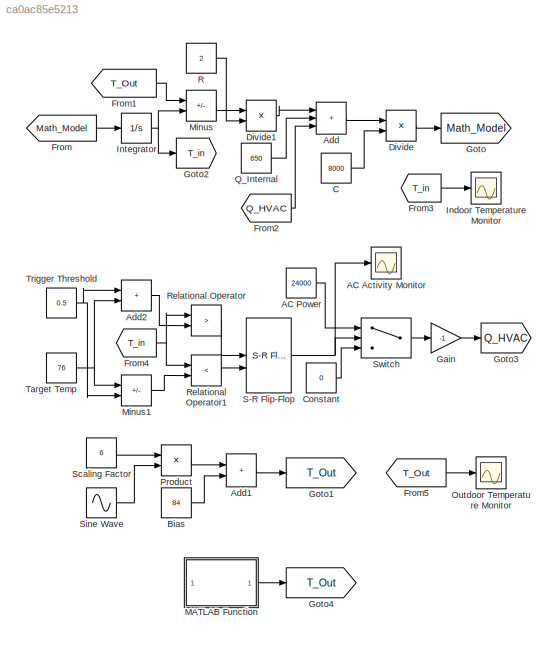
MODEL slx_ca0ac85e5213
KIND model
CONFIG AbsTol = auto
CONFIG EnableMultiTasking = off
CONFIG FixedStep = 1
CONFIG MaxStep = auto
CONFIG MinStep = auto
CONFIG RelTol = 1e-3
CONFIG SampleTimeConstraint = Unconstrained
CONFIG SolverName = ode1
CONFIG StartTime = 0.0
CONFIG StopTime = 24
BLOCK [Scope] AC Activity Monitor
  ActiveDisplayYMaximum = 1.982537619397353
  ActiveDisplayYMinimum = -1.7530103886364947
  DataLoggingVariableName = ScopeData2
  Floating = off
  GraphicalSettings = {"Style":{"BackgroundColor":[0.12941176470588237,0.12941176470588237,0.12941176470588237],"AxesColor":[0.07058823529411765,0.07058823529411765,0.07058823529411765],"LabelsColor":[0.8509803921568627,0.8509803921568627,0.8509803921568627],"PreserveColors":false,"Visible":[true],"LineStyle":["-"],"LineWidth":[1.5],"BarWidth":[0.9],"LineColor":["auto"],"LineFaceAlpha":[1],"LineEdgeAlpha":[1],"Marker":...<+1964ch>
  MultipleDisplayCache = [{"MaxYLimMag":1,"MaxYLimReal":1.982537619397353,"MinYLimMag":0,"MinYLimReal":-1.7530103886364947,"PlotAsMagnitudePhase":false,"ShowGrid":true,"ShowLegend":false,"Title":"%<SignalLabel>","YLabel":""}]
  NumInputPorts = 1
  ScopeFrameLocation = window
  Visible = on
  WasSavedAsWebScope = on
  WindowPosition = [2.000000,32.000000,766.000000,434.000000,]
BLOCK [Constant] AC Power
  Value = 24000
BLOCK [Sum] Add
  IconShape = rectangular
  Inputs = +++
BLOCK [Sum] Add1
  IconShape = rectangular
BLOCK [Sum] Add2
  IconShape = rectangular
BLOCK [Constant] Bias
  Value = 84
BLOCK [Constant] C
  Value = 8000
BLOCK [Constant] Constant
  Value = 0
BLOCK [Product] Divide
  Inputs = */
BLOCK [Product] Divide1
  Inputs = */
BLOCK [From] From
  GotoTag = Math_Model
BLOCK [From] From1
  GotoTag = T_Out
BLOCK [From] From2
  GotoTag = Q_HVAC
BLOCK [From] From3
  GotoTag = T_in
BLOCK [From] From4
  GotoTag = T_in
BLOCK [From] From5
  GotoTag = T_Out
BLOCK [Gain] Gain
  Gain = -1
BLOCK [Goto] Goto
  GotoTag = Math_Model
BLOCK [Goto] Goto1
  GotoTag = T_Out
BLOCK [Goto] Goto2
  GotoTag = T_in
BLOCK [Goto] Goto3
  GotoTag = Q_HVAC
BLOCK [Goto] Goto4
  Commented = on
  GotoTag = T_Out
BLOCK [Scope] Indoor Temperature Monitor
  ActiveDisplayYMaximum = 79.919930750359285
  ActiveDisplayYMinimum = 72.298778350453588
  Floating = off
  GraphicalSettings = {"AxesScalingProperties":{"AlignXAxis":"Center","AlignYAxis":"Center","AutoScaleXAxisLimits":false,"AxesScaling":"Manual","AxesScalingNumUpdates":10,"ExpandOnly":true,"ScaleAxesLimitsAtStop":false,"XAxisDataRange":100,"YAxisDataRange":80},"DisplayProperties":{"ColorOrder":["auto","auto","auto","auto","auto","auto","auto","auto","auto","auto","auto","auto","auto","auto","auto","auto","auto","auto",...<+2034ch>
  MultipleDisplayCache = [{"MaxYLimMag":77.207352791417975,"MaxYLimReal":79.919930750359285,"MinYLimMag":74.754738578731335,"MinYLimReal":72.298778350453588,"PlotAsMagnitudePhase":false,"ShowGrid":true,"ShowLegend":false,"Title":"%<SignalLabel>","YLabel":""}]
  NumInputPorts = 1
  ScopeFrameLocation = window
  Visible = on
  WasSavedAsWebScope = on
  WindowPosition = [770.000000,497.000000,766.000000,434.000000,]
BLOCK [Integrator] Integrator
  InitialCondition = 75
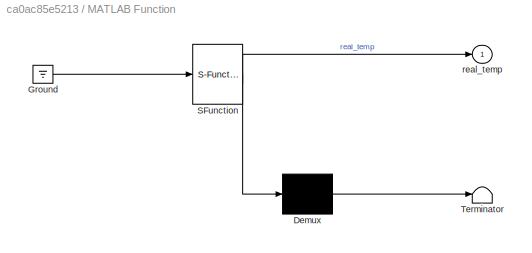
BLOCK [SubSystem] MATLAB Function
  Commented = on
  ErrorFcn = Stateflow.Translate.translate
  PermitHierarchicalResolution = ExplicitOnly
  SFBlockType = MATLAB Function
  TreatAsAtomicUnit = on
BLOCK [Demux] MATLAB Function/ Demux 
  Outputs = 1
BLOCK [Ground] MATLAB Function/ Ground 
BLOCK [S-Function] MATLAB Function/ SFunction 
  EnableBusSupport = off
  FunctionName = sf_sfun
  PortCounts = [1 2]
  SFcnIsStateOwnerBlock = off
  SFunctionDeploymentMode = off
  Tag = Stateflow S-Function 2
BLOCK [Terminator] MATLAB Function/ Terminator 
BLOCK [Outport] MATLAB Function/real_temp
BLOCK [Sum] Minus
  IconShape = rectangular
  Inputs = +-
BLOCK [Sum] Minus1
  IconShape = rectangular
  Inputs = +-
BLOCK [Scope] Outdoor Temperature Monitor
  ActiveDisplayYMaximum = 91.5
  ActiveDisplayYMinimum = 76.5
  DataLoggingVariableName = ScopeData1
  Floating = off
  GraphicalSettings = {"Style":{"BackgroundColor":[0.12941176470588237,0.12941176470588237,0.12941176470588237],"AxesColor":[0.07058823529411765,0.07058823529411765,0.07058823529411765],"LabelsColor":[0.8509803921568627,0.8509803921568627,0.8509803921568627],"PreserveColors":false,"Visible":[true],"LineStyle":["-"],"LineWidth":[1.5],"BarWidth":[0.9],"LineColor":["auto"],"LineFaceAlpha":[1],"LineEdgeAlpha":[1],"Marker":...<+1909ch>
  MultipleDisplayCache = [{"MaxYLimMag":91.5,"MaxYLimReal":91.5,"MinYLimMag":76.5,"MinYLimReal":76.5,"PlotAsMagnitudePhase":false,"ShowGrid":true,"ShowLegend":false,"Title":"%<SignalLabel>","YLabel":""}]
  NumInputPorts = 1
  ScopeFrameLocation = window
  Visible = on
  WasSavedAsWebScope = on
  WindowPosition = [770.000000,32.000000,766.000000,434.000000,]
BLOCK [Product] Product
BLOCK [Constant] Q_Internal
  Value = 650
BLOCK [Constant] R
  Value = 2
BLOCK [RelationalOperator] Relational Operator
  InputSameDT = off
  Operator = >
  OutDataTypeStr = boolean
  RndMeth = Simplest
BLOCK [RelationalOperator] Relational Operator1
  InputSameDT = off
  Operator = <
  OutDataTypeStr = boolean
  RndMeth = Simplest
BLOCK [Reference] S-R Flip-Flop  REF=simulink_extras/Flip Flops/S-R
Flip-Flop
  SourceBlock = simulink_extras/Flip Flops/S-R\nFlip-Flop
  SourceType = SRFlipFlop
BLOCK [Constant] Scaling Factor
  Value = 6
BLOCK [Sin] Sine Wave
  Frequency = pi/12
  Phase = -5*pi/6
  SampleTime = 0
BLOCK [Switch] Switch
  Criteria = u2 > Threshold
  InputSameDT = off
  SaturateOnIntegerOverflow = off
BLOCK [Constant] Target Temp
  Value = 76
BLOCK [Constant] Trigger Threshold
  Value = 0.5
LINE AC Power:1 -> Switch:1
LINE Add1:1 -> Goto1:1
LINE Add2:1 -> Relational Operator:2
LINE Add:1 -> Divide:1
LINE Bias:1 -> Add1:2
LINE C:1 -> Divide:2
LINE Constant:1 -> Switch:3
LINE Divide1:1 -> Add:1
LINE Divide:1 -> Goto:1
LINE From1:1 -> Minus:1
LINE From2:1 -> Add:3
LINE From3:1 -> Indoor Temperature Monitor:1
NET From4:1 -> Relational Operator1:1, Relational Operator:1
LINE From5:1 -> Outdoor Temperature Monitor:1
LINE From:1 -> Integrator:1
LINE Gain:1 -> Goto3:1
NET Integrator:1 -> Goto2:1, Minus:2
LINE MATLAB Function:1 -> Goto4:1
LINE Minus1:1 -> Relational Operator1:2
LINE Minus:1 -> Divide1:1
LINE Product:1 -> Add1:1
LINE Q_Internal:1 -> Add:2
LINE R:1 -> Divide1:2
LINE Relational Operator1:1 -> S-R Flip-Flop:2
LINE Relational Operator:1 -> S-R Flip-Flop:1
NET S-R Flip-Flop:1 -> AC Activity Monitor:1, Switch:2
LINE Scaling Factor:1 -> Product:1
LINE Sine Wave:1 -> Product:2
LINE Switch:1 -> Gain:1
NET Target Temp:1 -> Add2:2, Minus1:1
NET Trigger Threshold:1 -> Add2:1, Minus1:2
note: NET lines group one-source signal fan-out (src -> all destinations, sorted); 1:1 wires keep LINE
CHART MATLAB Function states=1 transitions=1
  STATE_LABEL 'eML_blk_kernel()'
  STATE_LABEL "SCRIPT:\nfunction real_temp = readESP32Temp()\n% This block's only job is to call the external helper function.\n\n    % Declare the helper function as extrinsic\n    coder.extrinsic('readMySensor');\n    \n    % Initialize the output for the code generator\n    real_temp = 0.0;\n    \n    % Call the helper function to get the latest temperature\n    real_temp = readMySensor();\nend"
CHART  states=0 transitions=0
